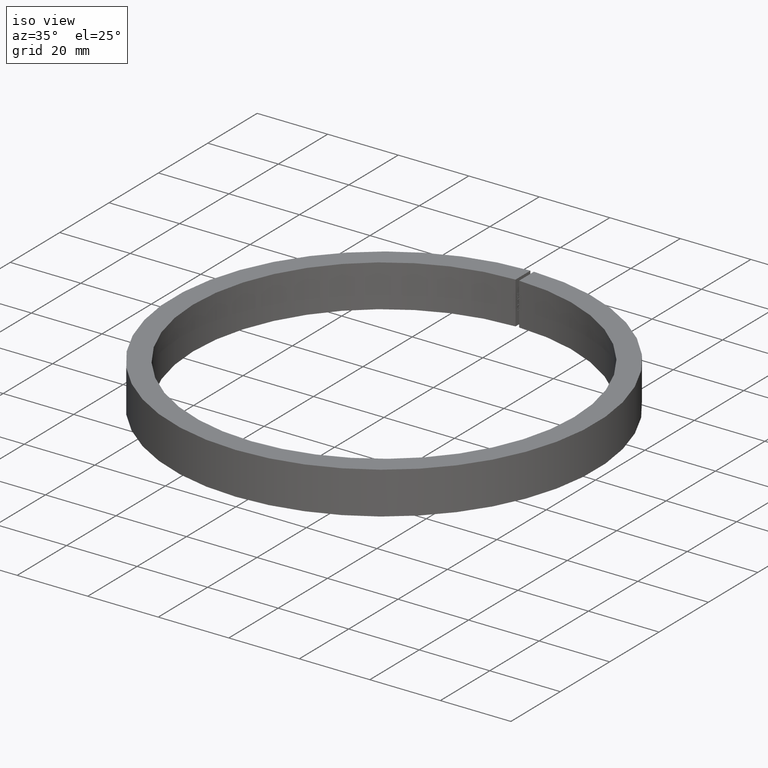
[diagram: clean part render]
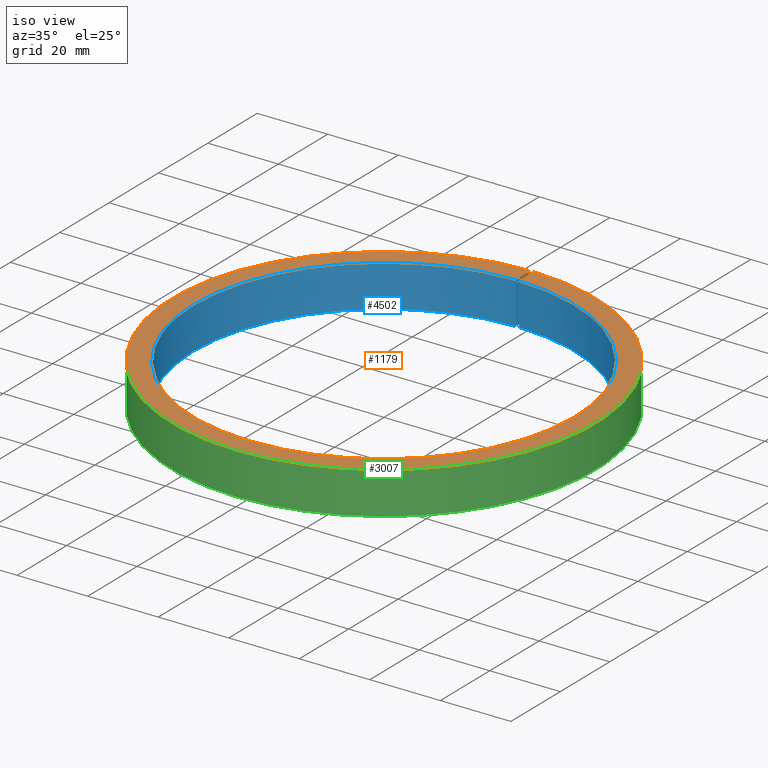
[diagram: same view with three faces highlighted in distinct colors, each labeled with its STEP entity id]
A machine part, iso view with three faces highlighted in distinct colors.
Their STEP definitions:

[orange] entity #1179 — the highlighted planar face has unit normal (-0, 0, -1).
#439 = DIRECTION ( 'NONE',  ( -0.0000000000000000000, -0.0000000000000000000, -1.000000000000000000 ) ) ;
#1121 = ORIENTED_EDGE ( 'NONE', *, *, #7869, .F. ) ;
#1179 = ADVANCED_FACE ( 'NONE', ( #8257 ), #7235, .F. ) ;
#1815 = CARTESIAN_POINT ( 'NONE',  ( 0.0000000000000000000, 0.0000000000000000000, 5.999999999999996400 ) ) ;
#1932 = VERTEX_POINT ( 'NONE', #9477 ) ;
#1977 = VERTEX_POINT ( 'NONE', #11396 ) ;
#2153 = DIRECTION ( 'NONE',  ( -1.000000000000000000, 0.0000000000000000000, 0.0000000000000000000 ) ) ;
#2312 = CARTESIAN_POINT ( 'NONE',  ( 0.5000000000000000000, 53.99768513556853800, 5.999999999999997300 ) ) ;
#3047 = CIRCLE ( 'NONE', #8580, 60.00000000000000000 ) ;
#4028 = LINE ( 'NONE', #8232, #4191 ) ;
#4106 = EDGE_LOOP ( 'NONE', ( #6492, #1121, #10598, #8612 ) ) ;
#4191 = VECTOR ( 'NONE', #7347, 1000.000000000000000 ) ;
#5490 = VERTEX_POINT ( 'NONE', #8277 ) ;
#5520 = VECTOR ( 'NONE', #9484, 1000.000000000000000 ) ;
#6212 = EDGE_CURVE ( 'NONE', #1932, #5490, #3047, .T. ) ;
#6275 = EDGE_CURVE ( 'NONE', #6384, #1977, #10140, .T. ) ;
#6384 = VERTEX_POINT ( 'NONE', #2312 ) ;
#6492 = ORIENTED_EDGE ( 'NONE', *, *, #6212, .F. ) ;
#6644 = DIRECTION ( 'NONE',  ( -0.0000000000000000000, 0.0000000000000000000, -1.000000000000000000 ) ) ;
#6711 = EDGE_CURVE ( 'NONE', #1977, #5490, #4028, .T. ) ;
#7177 = DIRECTION ( 'NONE',  ( -1.000000000000000000, 0.0000000000000000000, 0.0000000000000000000 ) ) ;
#7235 = PLANE ( 'NONE',  #8773 ) ;
#7347 = DIRECTION ( 'NONE',  ( 0.0000000000000000000, 1.000000000000000000, -0.0000000000000000000 ) ) ;
#7869 = EDGE_CURVE ( 'NONE', #6384, #1932, #10264, .T. ) ;
#8211 = CARTESIAN_POINT ( 'NONE',  ( 0.0000000000000000000, 0.0000000000000000000, 5.999999999999997300 ) ) ;
#8232 = CARTESIAN_POINT ( 'NONE',  ( -0.5000000000000000000, 0.0000000000000000000, 5.999999999999997300 ) ) ;
#8257 = FACE_OUTER_BOUND ( 'NONE', #4106, .T. ) ;
#8277 = CARTESIAN_POINT ( 'NONE',  ( -0.5000000000000000000, 59.99791663049642700, 5.999999999999997300 ) ) ;
#8443 = DIRECTION ( 'NONE',  ( -1.000000000000000000, 0.0000000000000000000, 0.0000000000000000000 ) ) ;
#8580 = AXIS2_PLACEMENT_3D ( 'NONE', #1815, #10781, #7177 ) ;
#8612 = ORIENTED_EDGE ( 'NONE', *, *, #6711, .T. ) ;
#8773 = AXIS2_PLACEMENT_3D ( 'NONE', #9899, #6644, #8443 ) ;
#9477 = CARTESIAN_POINT ( 'NONE',  ( 0.5000000000000000000, 59.99791663049643400, 5.999999999999996400 ) ) ;
#9484 = DIRECTION ( 'NONE',  ( 0.0000000000000000000, 1.000000000000000000, -0.0000000000000000000 ) ) ;
#9899 = CARTESIAN_POINT ( 'NONE',  ( 0.0000000000000000000, -54.00000000000000000, 5.999999999999996400 ) ) ;
#10140 = CIRCLE ( 'NONE', #10337, 54.00000000000000000 ) ;
#10264 = LINE ( 'NONE', #10330, #5520 ) ;
#10330 = CARTESIAN_POINT ( 'NONE',  ( 0.5000000000000000000, 0.0000000000000000000, 5.999999999999997300 ) ) ;
#10337 = AXIS2_PLACEMENT_3D ( 'NONE', #8211, #439, #2153 ) ;
#10598 = ORIENTED_EDGE ( 'NONE', *, *, #6275, .T. ) ;
#10781 = DIRECTION ( 'NONE',  ( -0.0000000000000000000, -0.0000000000000000000, -1.000000000000000000 ) ) ;
#11396 = CARTESIAN_POINT ( 'NONE',  ( -0.5000000000000000000, 53.99768513556853800, 5.999999999999997300 ) ) ;

[blue] entity #4502 — the highlighted cylindrical surface (partial cylindrical patch) has radius 54 mm, axis along (-0, -0, -1).
#439 = DIRECTION ( 'NONE',  ( -0.0000000000000000000, -0.0000000000000000000, -1.000000000000000000 ) ) ;
#695 = CARTESIAN_POINT ( 'NONE',  ( -0.5000000000000000000, 53.99768513556853800, -6.000000000000003600 ) ) ;
#1133 = CARTESIAN_POINT ( 'NONE',  ( 0.0000000000000000000, 0.0000000000000000000, 0.0000000000000000000 ) ) ;
#1367 = DIRECTION ( 'NONE',  ( -0.0000000000000000000, -0.0000000000000000000, 1.000000000000000000 ) ) ;
#1811 = VECTOR ( 'NONE', #5975, 1000.000000000000000 ) ;
#1961 = DIRECTION ( 'NONE',  ( -0.0000000000000000000, -0.0000000000000000000, -1.000000000000000000 ) ) ;
#1977 = VERTEX_POINT ( 'NONE', #11396 ) ;
#2091 = DIRECTION ( 'NONE',  ( -1.000000000000000000, 0.0000000000000000000, 0.0000000000000000000 ) ) ;
#2153 = DIRECTION ( 'NONE',  ( -1.000000000000000000, 0.0000000000000000000, 0.0000000000000000000 ) ) ;
#2312 = CARTESIAN_POINT ( 'NONE',  ( 0.5000000000000000000, 53.99768513556853800, 5.999999999999997300 ) ) ;
#2506 = LINE ( 'NONE', #695, #1811 ) ;
#2909 = DIRECTION ( 'NONE',  ( -0.0000000000000000000, -0.0000000000000000000, -1.000000000000000000 ) ) ;
#3160 = VECTOR ( 'NONE', #1367, 1000.000000000000000 ) ;
#4389 = AXIS2_PLACEMENT_3D ( 'NONE', #1133, #1961, #10717 ) ;
#4502 = ADVANCED_FACE ( 'NONE', ( #7440 ), #10204, .F. ) ;
#4722 = EDGE_CURVE ( 'NONE', #10502, #6384, #7829, .T. ) ;
#5975 = DIRECTION ( 'NONE',  ( -0.0000000000000000000, -0.0000000000000000000, 1.000000000000000000 ) ) ;
#6275 = EDGE_CURVE ( 'NONE', #6384, #1977, #10140, .T. ) ;
#6384 = VERTEX_POINT ( 'NONE', #2312 ) ;
#6584 = EDGE_LOOP ( 'NONE', ( #7073, #7116, #7907, #10032 ) ) ;
#6803 = EDGE_CURVE ( 'NONE', #10886, #1977, #2506, .T. ) ;
#7073 = ORIENTED_EDGE ( 'NONE', *, *, #6275, .F. ) ;
#7116 = ORIENTED_EDGE ( 'NONE', *, *, #4722, .F. ) ;
#7344 = CARTESIAN_POINT ( 'NONE',  ( 0.0000000000000000000, 0.0000000000000000000, -6.000000000000002700 ) ) ;
#7440 = FACE_OUTER_BOUND ( 'NONE', #6584, .T. ) ;
#7829 = LINE ( 'NONE', #9399, #3160 ) ;
#7907 = ORIENTED_EDGE ( 'NONE', *, *, #8687, .T. ) ;
#8041 = AXIS2_PLACEMENT_3D ( 'NONE', #7344, #2909, #2091 ) ;
#8211 = CARTESIAN_POINT ( 'NONE',  ( 0.0000000000000000000, 0.0000000000000000000, 5.999999999999997300 ) ) ;
#8429 = CARTESIAN_POINT ( 'NONE',  ( 0.5000000000000000000, 53.99768513556853800, -6.000000000000003600 ) ) ;
#8687 = EDGE_CURVE ( 'NONE', #10502, #10886, #9692, .T. ) ;
#9389 = CARTESIAN_POINT ( 'NONE',  ( -0.5000000000000000000, 53.99768513556853800, -6.000000000000003600 ) ) ;
#9399 = CARTESIAN_POINT ( 'NONE',  ( 0.5000000000000000000, 53.99768513556853800, -6.000000000000003600 ) ) ;
#9692 = CIRCLE ( 'NONE', #8041, 54.00000000000000000 ) ;
#10032 = ORIENTED_EDGE ( 'NONE', *, *, #6803, .T. ) ;
#10140 = CIRCLE ( 'NONE', #10337, 54.00000000000000000 ) ;
#10204 = CYLINDRICAL_SURFACE ( 'NONE', #4389, 54.00000000000000000 ) ;
#10337 = AXIS2_PLACEMENT_3D ( 'NONE', #8211, #439, #2153 ) ;
#10502 = VERTEX_POINT ( 'NONE', #8429 ) ;
#10717 = DIRECTION ( 'NONE',  ( -1.000000000000000000, 0.0000000000000000000, 0.0000000000000000000 ) ) ;
#10886 = VERTEX_POINT ( 'NONE', #9389 ) ;
#11396 = CARTESIAN_POINT ( 'NONE',  ( -0.5000000000000000000, 53.99768513556853800, 5.999999999999997300 ) ) ;

[green] entity #3007 — the highlighted cylindrical surface (partial cylindrical patch) has radius 60 mm, axis along (-0, -0, -1).
#839 = VECTOR ( 'NONE', #9320, 1000.000000000000000 ) ;
#1801 = VECTOR ( 'NONE', #1951, 1000.000000000000000 ) ;
#1815 = CARTESIAN_POINT ( 'NONE',  ( 0.0000000000000000000, 0.0000000000000000000, 5.999999999999996400 ) ) ;
#1932 = VERTEX_POINT ( 'NONE', #9477 ) ;
#1951 = DIRECTION ( 'NONE',  ( -0.0000000000000000000, -0.0000000000000000000, 1.000000000000000000 ) ) ;
#2021 = CIRCLE ( 'NONE', #6580, 60.00000000000000000 ) ;
#2286 = VERTEX_POINT ( 'NONE', #6002 ) ;
#2360 = ORIENTED_EDGE ( 'NONE', *, *, #7056, .T. ) ;
#2630 = LINE ( 'NONE', #7242, #1801 ) ;
#3007 = ADVANCED_FACE ( 'NONE', ( #8538 ), #7971, .T. ) ;
#3047 = CIRCLE ( 'NONE', #8580, 60.00000000000000000 ) ;
#3153 = DIRECTION ( 'NONE',  ( -0.0000000000000000000, -0.0000000000000000000, -1.000000000000000000 ) ) ;
#3172 = LINE ( 'NONE', #6543, #839 ) ;
#3455 = ORIENTED_EDGE ( 'NONE', *, *, #9110, .F. ) ;
#5382 = ORIENTED_EDGE ( 'NONE', *, *, #11289, .F. ) ;
#5408 = EDGE_LOOP ( 'NONE', ( #5382, #2360, #8052, #3455 ) ) ;
#5490 = VERTEX_POINT ( 'NONE', #8277 ) ;
#5806 = CARTESIAN_POINT ( 'NONE',  ( -0.5000000000000000000, 59.99791663049643400, -6.000000000000003600 ) ) ;
#5912 = DIRECTION ( 'NONE',  ( -1.000000000000000000, 0.0000000000000000000, 0.0000000000000000000 ) ) ;
#6002 = CARTESIAN_POINT ( 'NONE',  ( 0.5000000000000000000, 59.99791663049642700, -6.000000000000003600 ) ) ;
#6012 = VERTEX_POINT ( 'NONE', #5806 ) ;
#6090 = DIRECTION ( 'NONE',  ( -0.0000000000000000000, -0.0000000000000000000, -1.000000000000000000 ) ) ;
#6212 = EDGE_CURVE ( 'NONE', #1932, #5490, #3047, .T. ) ;
#6543 = CARTESIAN_POINT ( 'NONE',  ( -0.5000000000000000000, 59.99791663049642700, -6.000000000000003600 ) ) ;
#6580 = AXIS2_PLACEMENT_3D ( 'NONE', #8492, #3153, #5912 ) ;
#7039 = CARTESIAN_POINT ( 'NONE',  ( 0.0000000000000000000, 0.0000000000000000000, 0.0000000000000000000 ) ) ;
#7056 = EDGE_CURVE ( 'NONE', #2286, #1932, #2630, .T. ) ;
#7177 = DIRECTION ( 'NONE',  ( -1.000000000000000000, 0.0000000000000000000, 0.0000000000000000000 ) ) ;
#7242 = CARTESIAN_POINT ( 'NONE',  ( 0.5000000000000000000, 59.99791663049642700, -6.000000000000003600 ) ) ;
#7971 = CYLINDRICAL_SURFACE ( 'NONE', #8239, 60.00000000000000000 ) ;
#8052 = ORIENTED_EDGE ( 'NONE', *, *, #6212, .T. ) ;
#8239 = AXIS2_PLACEMENT_3D ( 'NONE', #7039, #6090, #11365 ) ;
#8277 = CARTESIAN_POINT ( 'NONE',  ( -0.5000000000000000000, 59.99791663049642700, 5.999999999999997300 ) ) ;
#8492 = CARTESIAN_POINT ( 'NONE',  ( 0.0000000000000000000, 0.0000000000000000000, -6.000000000000003600 ) ) ;
#8538 = FACE_OUTER_BOUND ( 'NONE', #5408, .T. ) ;
#8580 = AXIS2_PLACEMENT_3D ( 'NONE', #1815, #10781, #7177 ) ;
#9110 = EDGE_CURVE ( 'NONE', #6012, #5490, #3172, .T. ) ;
#9320 = DIRECTION ( 'NONE',  ( -0.0000000000000000000, -0.0000000000000000000, 1.000000000000000000 ) ) ;
#9477 = CARTESIAN_POINT ( 'NONE',  ( 0.5000000000000000000, 59.99791663049643400, 5.999999999999996400 ) ) ;
#10781 = DIRECTION ( 'NONE',  ( -0.0000000000000000000, -0.0000000000000000000, -1.000000000000000000 ) ) ;
#11289 = EDGE_CURVE ( 'NONE', #2286, #6012, #2021, .T. ) ;
#11365 = DIRECTION ( 'NONE',  ( -1.000000000000000000, 0.0000000000000000000, 0.0000000000000000000 ) ) ;